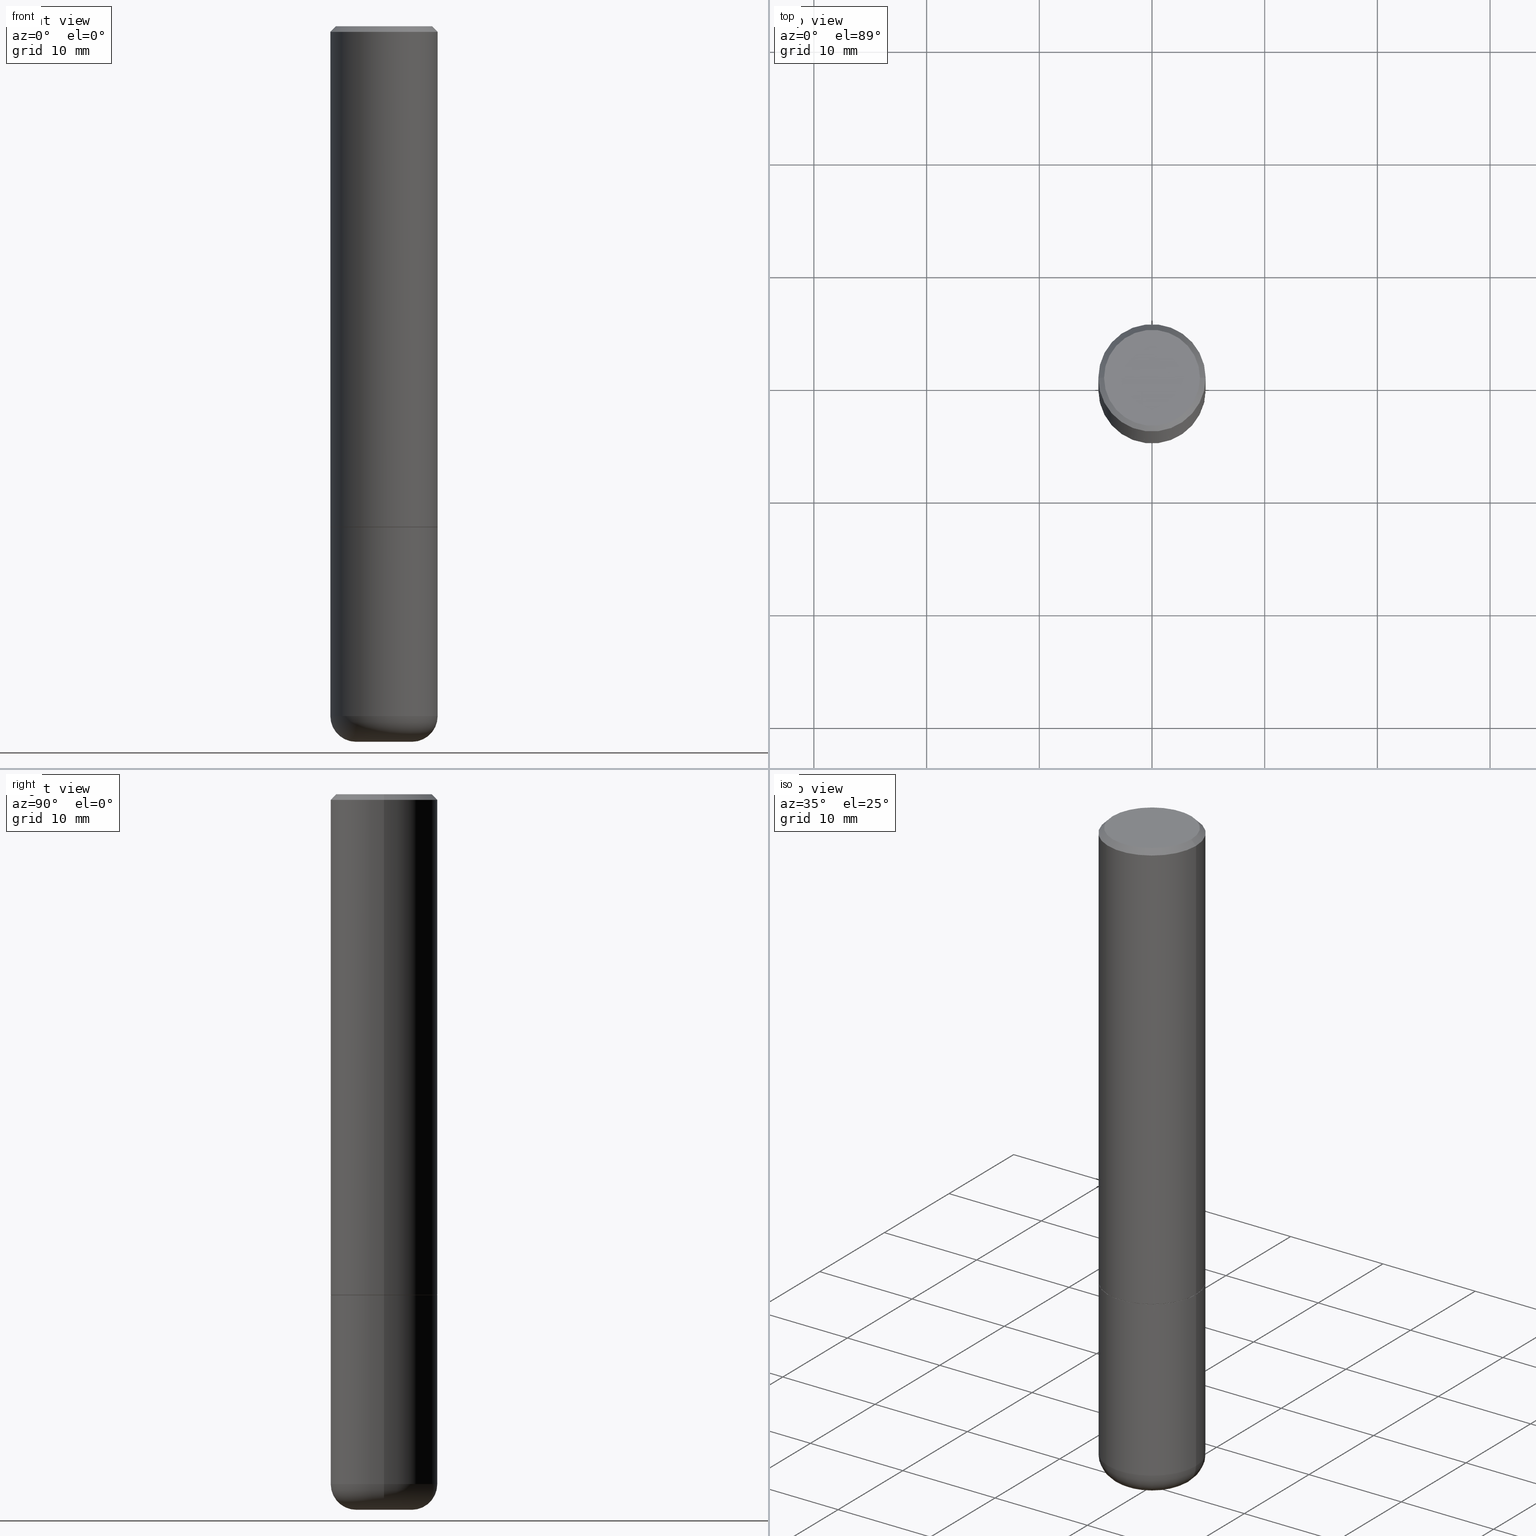
[diagram: canonical four-view strip — front | top / right | iso, engineering-drawing reading convention]
A machine part, canonical four-view strip (front | top / right | iso — engineering-drawing reading convention). The complete STEP part file that produces these views, byte-faithful:
ISO-10303-21;
HEADER;
FILE_DESCRIPTION (( 'STEP AP203' ),
    '1' );
FILE_NAME ('38824.STEP',
    '2024-03-03T15:08:20',
    ( '' ),
    ( '' ),
    'SwSTEP 2.0',
    'SolidWorks 2023',
    '' );
FILE_SCHEMA (( 'CONFIG_CONTROL_DESIGN' ));
ENDSEC;

DATA;
#1 = EDGE_CURVE ( 'NONE', #234, #343, #133, .T. ) ;
#2 = LINE ( 'NONE', #179, #131 ) ;
#3 = VERTEX_POINT ( 'NONE', #364 ) ;
#4 = DIRECTION ( 'NONE',  ( 1.000000000000000000, -6.982962677686265922E-15, 0.000000000000000000 ) ) ;
#5 = EDGE_LOOP ( 'NONE', ( #176, #320, #331, #142 ) ) ;
#6 = CC_DESIGN_SECURITY_CLASSIFICATION ( #139, ( #114 ) ) ;
#7 = CC_DESIGN_PERSON_AND_ORGANIZATION_ASSIGNMENT ( #191, #77, ( #114 ) ) ;
#8 = DIRECTION ( 'NONE',  ( 1.000000000000000000, -6.982962677686265922E-15, 0.000000000000000000 ) ) ;
#9 = AXIS2_PLACEMENT_3D ( 'NONE', #304, #171, #101 ) ;
#10 = DIRECTION ( 'NONE',  ( 7.105427357601001859E-15, 1.000000000000000000, -3.491481338843145583E-15 ) ) ;
#11 = CARTESIAN_POINT ( 'NONE',  ( -0.1675000000000000100, 1.204561061900881047E-15, 2.134256245049375487E-17 ) ) ;
#12 = DIRECTION ( 'NONE',  ( -2.445468806185136597E-29, 3.491481338843145583E-15, 1.000000000000000000 ) ) ;
#13 = CARTESIAN_POINT ( 'NONE',  ( -0.09750000000000001721, -7.721690859245884565E-15, -2.410000000000000142 ) ) ;
#14 = ORIENTED_EDGE ( 'NONE', *, *, #410, .F. ) ;
#15 = CIRCLE ( 'NONE', #208, 0.08999999999999992728 ) ;
#16 = DIRECTION ( 'NONE',  ( 1.000000000000000000, -6.982962677686265922E-15, 0.000000000000000000 ) ) ;
#17 = APPROVAL ( #23, 'UNSPECIFIED' ) ;
#18 = ORIENTED_EDGE ( 'NONE', *, *, #31, .T. ) ;
#19 = DIRECTION ( 'NONE',  ( -2.445468806185136597E-29, 3.491481338843145583E-15, 1.000000000000000000 ) ) ;
#20 = PERSON_AND_ORGANIZATION ( #342, #418 ) ;
#21 = ADVANCED_BREP_SHAPE_REPRESENTATION ( '38824', ( #289, #41, #415 ), #216 ) ;
#22 = ORIENTED_EDGE ( 'NONE', *, *, #410, .T. ) ;
#23 = APPROVAL_STATUS ( 'not_yet_approved' ) ;
#24 = APPROVAL ( #28, 'UNSPECIFIED' ) ;
#25 = APPROVAL_ROLE ( '' ) ;
#26 = APPLICATION_CONTEXT ( 'configuration controlled 3d designs of mechanical parts and assemblies' ) ;
#27 = DIRECTION ( 'NONE',  ( -0.7071067811865715536, 7.493145998870439357E-15, 0.7071067811865232589 ) ) ;
#28 = APPROVAL_STATUS ( 'not_yet_approved' ) ;
#29 = CC_DESIGN_PERSON_AND_ORGANIZATION_ASSIGNMENT ( #405, #118, ( #139 ) ) ;
#30 = CONICAL_SURFACE ( 'NONE', #60, 0.1865000000000000546, 0.7853981633974824739 ) ;
#31 = EDGE_CURVE ( 'NONE', #264, #46, #67, .T. ) ;
#32 = EDGE_CURVE ( 'NONE', #128, #264, #251, .T. ) ;
#33 = AXIS2_PLACEMENT_3D ( 'NONE', #38, #269, #100 ) ;
#34 = FACE_OUTER_BOUND ( 'NONE', #277, .T. ) ;
#35 = CIRCLE ( 'NONE', #88, 0.1875000000000001943 ) ;
#36 = ORIENTED_EDGE ( 'NONE', *, *, #130, .T. ) ;
#37 = APPROVAL_STATUS ( 'not_yet_approved' ) ;
#38 = CARTESIAN_POINT ( 'NONE',  ( 0.000000000000000000, 0.000000000000000000, 0.000000000000000000 ) ) ;
#39 = FACE_OUTER_BOUND ( 'NONE', #5, .T. ) ;
#40 = CARTESIAN_POINT ( 'NONE',  ( 0.1875000000000000555, -1.356173001359025663E-15, -0.02000000000000004205 ) ) ;
#41 = MANIFOLD_SOLID_BREP ( 'Body-Move/Copy2[2]', #257 ) ;
#42 = CARTESIAN_POINT ( 'NONE',  ( 0.000000000000000000, 0.000000000000000000, 0.000000000000000000 ) ) ;
#43 = CARTESIAN_POINT ( 'NONE',  ( -0.1875000000000000555, 1.239475875289312104E-15, -0.02000000000000004205 ) ) ;
#44 = DIRECTION ( 'NONE',  ( -1.000000000000000000, 6.982962677686265922E-15, 0.000000000000000000 ) ) ;
#45 = DIRECTION ( 'NONE',  ( 1.000000000000000000, -6.982962677686265922E-15, 0.000000000000000000 ) ) ;
#46 = VERTEX_POINT ( 'NONE', #43 ) ;
#47 =( CONVERSION_BASED_UNIT ( 'INCH', #318 ) LENGTH_UNIT ( ) NAMED_UNIT ( #126 ) );
#48 = ADVANCED_FACE ( 'NONE', ( #39 ), #30, .T. ) ;
#49 = AXIS2_PLACEMENT_3D ( 'NONE', #388, #291, #258 ) ;
#50 = ORIENTED_EDGE ( 'NONE', *, *, #73, .F. ) ;
#51 = APPROVAL_DATE_TIME ( #282, #17 ) ;
#52 = APPROVAL_PERSON_ORGANIZATION ( #108, #98, #366 ) ;
#53 = FACE_OUTER_BOUND ( 'NONE', #194, .T. ) ;
#54 = APPLICATION_PROTOCOL_DEFINITION ( 'international standard', 'config_control_design', 1994, #209 ) ;
#55 = CARTESIAN_POINT ( 'NONE',  ( -0.1874999999999999722, -7.082202397061793830E-15, -2.410000000000000142 ) ) ;
#56 = ORIENTED_EDGE ( 'NONE', *, *, #32, .T. ) ;
#57 = COORDINATED_UNIVERSAL_TIME_OFFSET ( 5, 0, .BEHIND. ) ;
#58 = AXIS2_PLACEMENT_3D ( 'NONE', #13, #10, #244 ) ;
#59 = AXIS2_PLACEMENT_3D ( 'NONE', #200, #168, #8 ) ;
#60 = AXIS2_PLACEMENT_3D ( 'NONE', #268, #334, #45 ) ;
#61 = EDGE_CURVE ( 'NONE', #310, #161, #125, .T. ) ;
#62 = CARTESIAN_POINT ( 'NONE',  ( 4.279570410823989044E-29, -6.110092342975505460E-15, -1.750000000000000222 ) ) ;
#63 = FACE_OUTER_BOUND ( 'NONE', #134, .T. ) ;
#64 = PLANE ( 'NONE',  #281 ) ;
#65 = ORIENTED_EDGE ( 'NONE', *, *, #106, .T. ) ;
#66 = LINE ( 'NONE', #267, #70 ) ;
#67 = LINE ( 'NONE', #332, #371 ) ;
#68 = CARTESIAN_POINT ( 'NONE',  ( 5.893579822906179826E-29, -8.414470026611981678E-15, -2.410000000000000142 ) ) ;
#69 = EDGE_LOOP ( 'NONE', ( #177, #120 ) ) ;
#70 = VECTOR ( 'NONE', #363, 39.37007874015748143 ) ;
#71 = CARTESIAN_POINT ( 'NONE',  ( -0.1875000000000000278, -5.930013555243555721E-15, -1.750000000000000222 ) ) ;
#72 = DIRECTION ( 'NONE',  ( 1.000000000000000000, -6.982962677686261189E-15, 0.000000000000000000 ) ) ;
#73 = EDGE_CURVE ( 'NONE', #3, #161, #330, .T. ) ;
#74 = LINE ( 'NONE', #79, #266 ) ;
#75 = ORIENTED_EDGE ( 'NONE', *, *, #93, .F. ) ;
#76 = DATE_AND_TIME ( #245, #293 ) ;
#77 = PERSON_AND_ORGANIZATION_ROLE ( 'creator' ) ;
#78 = CC_DESIGN_APPROVAL ( #17, ( #114 ) ) ;
#79 = CARTESIAN_POINT ( 'NONE',  ( -0.1875000000000001110, 1.332267629550188637E-15, -9.223003294227953596E-30 ) ) ;
#80 = CC_DESIGN_PERSON_AND_ORGANIZATION_ASSIGNMENT ( #402, #275, ( #129 ) ) ;
#81 = DATE_TIME_ROLE ( 'creation_date' ) ;
#82 = CARTESIAN_POINT ( 'NONE',  ( 4.279570410823989044E-29, -6.110092342975505460E-15, -1.750000000000000222 ) ) ;
#83 = ORIENTED_EDGE ( 'NONE', *, *, #1, .F. ) ;
#84 = CARTESIAN_POINT ( 'NONE',  ( -0.1875000000000000278, 1.332267629550188046E-15, -9.223003294227947991E-30 ) ) ;
#85 = CALENDAR_DATE ( 2024, 3, 3 ) ;
#86 = CONICAL_SURFACE ( 'NONE', #387, 0.1875000000000000555, 0.7853981633974473908 ) ;
#87 = AXIS2_PLACEMENT_3D ( 'NONE', #376, #347, #181 ) ;
#88 = AXIS2_PLACEMENT_3D ( 'NONE', #414, #189, #119 ) ;
#89 = EDGE_CURVE ( 'NONE', #167, #377, #372, .T. ) ;
#90 = CARTESIAN_POINT ( 'NONE',  ( 0.1875000000000001943, -7.415906363702837461E-15, -1.749000000000000110 ) ) ;
#91 = FACE_OUTER_BOUND ( 'NONE', #197, .T. ) ;
#92 = CARTESIAN_POINT ( 'NONE',  ( 4.279570410823989044E-29, -6.110092342975505460E-15, -1.750000000000000222 ) ) ;
#93 = EDGE_CURVE ( 'NONE', #343, #234, #99, .T. ) ;
#94 = CARTESIAN_POINT ( 'NONE',  ( 0.1875000000000000278, -7.419397845041680468E-15, -1.750000000000000222 ) ) ;
#95 = DIRECTION ( 'NONE',  ( -2.445468806185136597E-29, 3.491481338843145583E-15, 1.000000000000000000 ) ) ;
#96 = FACE_OUTER_BOUND ( 'NONE', #385, .T. ) ;
#97 = ORIENTED_EDGE ( 'NONE', *, *, #280, .F. ) ;
#98 = APPROVAL ( #37, 'UNSPECIFIED' ) ;
#99 = CIRCLE ( 'NONE', #109, 0.1875000000000000278 ) ;
#100 = DIRECTION ( 'NONE',  ( 1.000000000000000000, -6.982962677686266711E-15, 4.876176775795935793E-29 ) ) ;
#101 = DIRECTION ( 'NONE',  ( 1.000000000000000000, -6.982962677686266711E-15, 0.000000000000000000 ) ) ;
#102 = CARTESIAN_POINT ( 'NONE',  ( 1.169646248512449595E-15, 0.1675000000000000100, -5.741518430309759002E-16 ) ) ;
#103 = DIRECTION ( 'NONE',  ( 1.000000000000000000, -6.982962677686266711E-15, 4.875370901645440628E-29 ) ) ;
#104 = ADVANCED_FACE ( 'NONE', ( #406 ), #215, .T. ) ;
#105 = ORIENTED_EDGE ( 'NONE', *, *, #166, .T. ) ;
#106 = EDGE_CURVE ( 'NONE', #161, #343, #341, .T. ) ;
#107 = LOCAL_TIME ( 10, 8, 20.00000000000000000, #217 ) ;
#108 = PERSON_AND_ORGANIZATION ( #342, #418 ) ;
#109 = AXIS2_PLACEMENT_3D ( 'NONE', #82, #116, #411 ) ;
#110 = ORIENTED_EDGE ( 'NONE', *, *, #221, .F. ) ;
#111 = DATE_TIME_ROLE ( 'classification_date' ) ;
#112 = FACE_OUTER_BOUND ( 'NONE', #69, .T. ) ;
#113 = PERSON_AND_ORGANIZATION ( #342, #418 ) ;
#114 = PRODUCT_DEFINITION_FORMATION_WITH_SPECIFIED_SOURCE ( 'ANY', '', #129, .NOT_KNOWN. ) ;
#115 = DESIGN_CONTEXT ( 'detailed design', #26, 'design' ) ;
#116 = DIRECTION ( 'NONE',  ( -2.445468806185136597E-29, 3.491481338843145583E-15, 1.000000000000000000 ) ) ;
#117 = CIRCLE ( 'NONE', #87, 0.1865000000000000546 ) ;
#118 = PERSON_AND_ORGANIZATION_ROLE ( 'classification_officer' ) ;
#119 = DIRECTION ( 'NONE',  ( 1.000000000000000000, -6.982962677686265922E-15, 0.000000000000000000 ) ) ;
#120 = ORIENTED_EDGE ( 'NONE', *, *, #93, .T. ) ;
#121 = CALENDAR_DATE ( 2024, 3, 3 ) ;
#122 = CARTESIAN_POINT ( 'NONE',  ( -5.219257071676098903E-46, 7.451715851902235727E-32, 2.134256245050205639E-17 ) ) ;
#123 = ADVANCED_FACE ( 'NONE', ( #276 ), #225, .T. ) ;
#124 = CIRCLE ( 'NONE', #353, 0.1875000000000000555 ) ;
#125 = CIRCLE ( 'NONE', #58, 0.08999999999999992728 ) ;
#126 = DIMENSIONAL_EXPONENTS ( 1.000000000000000000, 0.000000000000000000, 0.000000000000000000, 0.000000000000000000, 0.000000000000000000, 0.000000000000000000, 0.000000000000000000 ) ;
#127 = CARTESIAN_POINT ( 'NONE',  ( 4.890937612370283668E-31, -6.982962677686305168E-17, -0.02000000000000004205 ) ) ;
#128 = VERTEX_POINT ( 'NONE', #403 ) ;
#129 = PRODUCT ( '38824', '38824', '', ( #283 ) ) ;
#130 = EDGE_CURVE ( 'NONE', #377, #211, #35, .T. ) ;
#131 = VECTOR ( 'NONE', #219, 39.37007874015748854 ) ;
#132 = DIRECTION ( 'NONE',  ( -2.445468806185136597E-29, 3.491481338843145583E-15, 1.000000000000000000 ) ) ;
#133 = CIRCLE ( 'NONE', #9, 0.1875000000000000278 ) ;
#134 = EDGE_LOOP ( 'NONE', ( #14, #36, #143, #97 ) ) ;
#135 = CARTESIAN_POINT ( 'NONE',  ( 0.1875000000000001110, -1.309305502066175797E-15, 9.142831454617385217E-30 ) ) ;
#136 = ORIENTED_EDGE ( 'NONE', *, *, #274, .F. ) ;
#137 = DIRECTION ( 'NONE',  ( -1.000000000000000000, 6.982962677686265922E-15, -4.876176775795935793E-29 ) ) ;
#138 = CARTESIAN_POINT ( 'NONE',  ( -5.219257071676098903E-46, 7.451715851902235727E-32, 2.134256245050205639E-17 ) ) ;
#139 = SECURITY_CLASSIFICATION ( '', '', #373 ) ;
#140 = DIRECTION ( 'NONE',  ( 1.000000000000000000, -6.982962677686265922E-15, 4.876176775795935793E-29 ) ) ;
#141 = CARTESIAN_POINT ( 'NONE',  ( -0.09750000000000003109, -7.559063288401780041E-15, -2.500000000000000000 ) ) ;
#142 = ORIENTED_EDGE ( 'NONE', *, *, #399, .F. ) ;
#143 = ORIENTED_EDGE ( 'NONE', *, *, #323, .T. ) ;
#144 = TOROIDAL_SURFACE ( 'NONE', #273, 0.09750000000000001721, 0.08999999999999992728 ) ;
#145 =( NAMED_UNIT ( * ) SI_UNIT ( $, .STERADIAN. ) SOLID_ANGLE_UNIT ( ) );
#146 = CIRCLE ( 'NONE', #148, 0.1865000000000000546 ) ;
#147 = CARTESIAN_POINT ( 'NONE',  ( -0.1865000000000000546, -4.779631686434695429E-15, -1.750000000000000222 ) ) ;
#148 = AXIS2_PLACEMENT_3D ( 'NONE', #322, #379, #16 ) ;
#149 = ORIENTED_EDGE ( 'NONE', *, *, #380, .F. ) ;
#150 =( NAMED_UNIT ( * ) PLANE_ANGLE_UNIT ( ) SI_UNIT ( $, .RADIAN. ) );
#151 = DIRECTION ( 'NONE',  ( 1.000000000000000000, -6.982962677686265133E-15, 4.883557194083112340E-29 ) ) ;
#152 = EDGE_LOOP ( 'NONE', ( #248, #345, #18, #240 ) ) ;
#153 = SHAPE_DEFINITION_REPRESENTATION ( #315, #21 ) ;
#154 = EDGE_LOOP ( 'NONE', ( #407, #314, #50, #292 ) ) ;
#155 = CALENDAR_DATE ( 2024, 3, 3 ) ;
#156 = DIRECTION ( 'NONE',  ( 1.000000000000000000, 0.000000000000000000, 0.000000000000000000 ) ) ;
#157 = CARTESIAN_POINT ( 'NONE',  ( 6.113672015462842613E-29, -8.728703347107864943E-15, -2.500000000000000000 ) ) ;
#158 = CLOSED_SHELL ( 'NONE', ( #228, #326, #186, #252, #180, #104 ) ) ;
#159 = EDGE_CURVE ( 'NONE', #164, #167, #117, .T. ) ;
#160 = LINE ( 'NONE', #344, #409 ) ;
#161 = VERTEX_POINT ( 'NONE', #55 ) ;
#162 = LOCAL_TIME ( 10, 8, 20.00000000000000000, #284 ) ;
#163 = EDGE_CURVE ( 'NONE', #128, #254, #160, .T. ) ;
#164 = VERTEX_POINT ( 'NONE', #253 ) ;
#165 = VECTOR ( 'NONE', #204, 39.37007874015748143 ) ;
#166 = EDGE_CURVE ( 'NONE', #167, #164, #146, .T. ) ;
#167 = VERTEX_POINT ( 'NONE', #147 ) ;
#168 = DIRECTION ( 'NONE',  ( -2.445468806185136597E-29, 3.491481338843145583E-15, 1.000000000000000000 ) ) ;
#169 = ORIENTED_EDGE ( 'NONE', *, *, #73, .T. ) ;
#170 = CARTESIAN_POINT ( 'NONE',  ( 0.000000000000000000, 0.000000000000000000, 0.000000000000000000 ) ) ;
#171 = DIRECTION ( 'NONE',  ( -2.445468806185136597E-29, 3.491481338843145583E-15, 1.000000000000000000 ) ) ;
#172 = EDGE_CURVE ( 'NONE', #264, #128, #389, .T. ) ;
#173 = CARTESIAN_POINT ( 'NONE',  ( 6.113672015462842613E-29, -8.728703347107864943E-15, -2.500000000000000000 ) ) ;
#174 = CARTESIAN_POINT ( 'NONE',  ( 5.893579822906179826E-29, -8.414470026611981678E-15, -2.410000000000000142 ) ) ;
#175 = FACE_OUTER_BOUND ( 'NONE', #370, .T. ) ;
#176 = ORIENTED_EDGE ( 'NONE', *, *, #159, .T. ) ;
#177 = ORIENTED_EDGE ( 'NONE', *, *, #1, .T. ) ;
#178 = PERSON_AND_ORGANIZATION_ROLE ( 'design_supplier' ) ;
#179 = CARTESIAN_POINT ( 'NONE',  ( 0.1865000000000000546, -7.412414882363994454E-15, -1.750000000000000222 ) ) ;
#180 = ADVANCED_FACE ( 'NONE', ( #53 ), #231, .T. ) ;
#181 = DIRECTION ( 'NONE',  ( 1.000000000000000000, -6.982962677686265922E-15, 0.000000000000000000 ) ) ;
#182 = PERSON_AND_ORGANIZATION_ROLE ( 'creator' ) ;
#183 = CIRCLE ( 'NONE', #49, 0.1875000000000000278 ) ;
#184 =( LENGTH_UNIT ( ) NAMED_UNIT ( * ) SI_UNIT ( $, .METRE. ) );
#185 = AXIS2_PLACEMENT_3D ( 'NONE', #42, #95, #398 ) ;
#186 = ADVANCED_FACE ( 'NONE', ( #112 ), #224, .F. ) ;
#187 = PERSON_AND_ORGANIZATION ( #342, #418 ) ;
#188 = EDGE_CURVE ( 'NONE', #161, #3, #183, .T. ) ;
#189 = DIRECTION ( 'NONE',  ( -2.445468806185136597E-29, 3.491481338843145583E-15, 1.000000000000000000 ) ) ;
#190 = ORIENTED_EDGE ( 'NONE', *, *, #31, .F. ) ;
#191 = PERSON_AND_ORGANIZATION ( #342, #418 ) ;
#192 = DIRECTION ( 'NONE',  ( -2.445468806185136597E-29, 3.491481338843145583E-15, 1.000000000000000000 ) ) ;
#193 = CARTESIAN_POINT ( 'NONE',  ( 4.277124942017804562E-29, -6.106600861636661664E-15, -1.749000000000000110 ) ) ;
#194 = EDGE_LOOP ( 'NONE', ( #285, #392, #203, #220 ) ) ;
#195 = CC_DESIGN_APPROVAL ( #24, ( #139 ) ) ;
#196 = CYLINDRICAL_SURFACE ( 'NONE', #232, 0.1875000000000000278 ) ;
#197 = EDGE_LOOP ( 'NONE', ( #169, #65, #83, #136 ) ) ;
#198 = EDGE_CURVE ( 'NONE', #211, #377, #393, .T. ) ;
#199 = CIRCLE ( 'NONE', #369, 0.09750000000000003109 ) ;
#200 = CARTESIAN_POINT ( 'NONE',  ( 6.113672015462842613E-29, -8.728703347107864943E-15, -2.500000000000000000 ) ) ;
#201 = CARTESIAN_POINT ( 'NONE',  ( -0.1865000000000000546, -4.784930140782917831E-15, -1.750000000000000222 ) ) ;
#202 = DIRECTION ( 'NONE',  ( 2.445468806185136597E-29, -3.491481338843145583E-15, -1.000000000000000000 ) ) ;
#203 = ORIENTED_EDGE ( 'NONE', *, *, #382, .T. ) ;
#204 = DIRECTION ( 'NONE',  ( -2.445468806185136877E-29, 3.491481338843145188E-15, 1.000000000000000000 ) ) ;
#205 = DIRECTION ( 'NONE',  ( -2.445468806185136597E-29, 3.491481338843145583E-15, 1.000000000000000000 ) ) ;
#206 = PRODUCT_RELATED_PRODUCT_CATEGORY ( 'detail', '', ( #129 ) ) ;
#207 = DIRECTION ( 'NONE',  ( 2.445468806185136597E-29, -3.491481338843145583E-15, -1.000000000000000000 ) ) ;
#208 = AXIS2_PLACEMENT_3D ( 'NONE', #361, #329, #296 ) ;
#209 = APPLICATION_CONTEXT ( 'configuration controlled 3d designs of mechanical parts and assemblies' ) ;
#210 = DIRECTION ( 'NONE',  ( -2.445468806185136597E-29, 3.491481338843145583E-15, 1.000000000000000000 ) ) ;
#211 = VERTEX_POINT ( 'NONE', #90 ) ;
#212 = DIRECTION ( 'NONE',  ( 0.000000000000000000, 0.000000000000000000, 1.000000000000000000 ) ) ;
#213 = CARTESIAN_POINT ( 'NONE',  ( 4.279570410823989044E-29, -6.110092342975505460E-15, -1.750000000000000222 ) ) ;
#214 = CC_DESIGN_DATE_AND_TIME_ASSIGNMENT ( #76, #111, ( #139 ) ) ;
#215 = PLANE ( 'NONE',  #305 ) ;
#216 =( GEOMETRIC_REPRESENTATION_CONTEXT ( 3 ) GLOBAL_UNCERTAINTY_ASSIGNED_CONTEXT ( ( #265 ) ) GLOBAL_UNIT_ASSIGNED_CONTEXT ( ( #47, #150, #145 ) ) REPRESENTATION_CONTEXT ( 'NONE', 'WORKASPACE' ) );
#217 = COORDINATED_UNIVERSAL_TIME_OFFSET ( 5, 0, .BEHIND. ) ;
#218 = DIRECTION ( 'NONE',  ( 1.000000000000000000, -6.982962677686265922E-15, 0.000000000000000000 ) ) ;
#219 = DIRECTION ( 'NONE',  ( 0.7071067811865715536, -2.468850131082509496E-15, 0.7071067811865232589 ) ) ;
#220 = ORIENTED_EDGE ( 'NONE', *, *, #188, .F. ) ;
#221 = EDGE_CURVE ( 'NONE', #254, #46, #259, .T. ) ;
#222 = DATE_AND_TIME ( #121, #107 ) ;
#223 = AXIS2_PLACEMENT_3D ( 'NONE', #62, #383, #140 ) ;
#224 = PLANE ( 'NONE',  #286 ) ;
#225 = CONICAL_SURFACE ( 'NONE', #359, 0.1865000000000000546, 0.7853981633974824739 ) ;
#226 = DIRECTION ( 'NONE',  ( 2.438088387897960049E-29, -3.491481338843145188E-15, -1.000000000000000000 ) ) ;
#227 = FACE_OUTER_BOUND ( 'NONE', #243, .T. ) ;
#228 = ADVANCED_FACE ( 'NONE', ( #91 ), #196, .T. ) ;
#229 = AXIS2_PLACEMENT_3D ( 'NONE', #122, #375, #256 ) ;
#230 = FACE_OUTER_BOUND ( 'NONE', #154, .T. ) ;
#231 = TOROIDAL_SURFACE ( 'NONE', #351, 0.09750000000000001721, 0.08999999999999992728 ) ;
#232 = AXIS2_PLACEMENT_3D ( 'NONE', #356, #192, #260 ) ;
#233 = DIRECTION ( 'NONE',  ( 1.000000000000000000, -6.982962677686266711E-15, 4.876176775795935793E-29 ) ) ;
#234 = VERTEX_POINT ( 'NONE', #94 ) ;
#235 = ORIENTED_EDGE ( 'NONE', *, *, #159, .F. ) ;
#236 = AXIS2_PLACEMENT_3D ( 'NONE', #138, #205, #103 ) ;
#237 = DIRECTION ( 'NONE',  ( -1.000000000000000000, 6.982962677686265922E-15, 0.000000000000000000 ) ) ;
#238 = ADVANCED_FACE ( 'NONE', ( #227 ), #360, .F. ) ;
#239 = EDGE_LOOP ( 'NONE', ( #327, #149 ) ) ;
#240 = ORIENTED_EDGE ( 'NONE', *, *, #280, .T. ) ;
#241 = DIRECTION ( 'NONE',  ( 1.000000000000000000, -6.982962677686265922E-15, 0.000000000000000000 ) ) ;
#242 = CARTESIAN_POINT ( 'NONE',  ( 4.890937612370283668E-31, -6.982962677686305168E-17, -0.02000000000000004205 ) ) ;
#243 = EDGE_LOOP ( 'NONE', ( #235, #350 ) ) ;
#244 = DIRECTION ( 'NONE',  ( -1.000000000000000000, 7.105427357600996337E-15, 0.000000000000000000 ) ) ;
#245 = CALENDAR_DATE ( 2024, 3, 3 ) ;
#246 = CC_DESIGN_PERSON_AND_ORGANIZATION_ASSIGNMENT ( #187, #182, ( #391 ) ) ;
#247 = CARTESIAN_POINT ( 'NONE',  ( 5.893579822906179826E-29, -8.414470026611981678E-15, -2.410000000000000142 ) ) ;
#248 = ORIENTED_EDGE ( 'NONE', *, *, #163, .F. ) ;
#249 = COORDINATED_UNIVERSAL_TIME_OFFSET ( 5, 0, .BEHIND. ) ;
#250 = DIRECTION ( 'NONE',  ( -1.000000000000000000, 6.982962677686265922E-15, -4.876176775795935793E-29 ) ) ;
#251 = CIRCLE ( 'NONE', #236, 0.1675000000000000100 ) ;
#252 = ADVANCED_FACE ( 'NONE', ( #298 ), #390, .T. ) ;
#253 = CARTESIAN_POINT ( 'NONE',  ( 0.1865000000000000546, -7.412414882363994454E-15, -1.750000000000000222 ) ) ;
#254 = VERTEX_POINT ( 'NONE', #40 ) ;
#255 = APPROVAL_DATE_TIME ( #222, #24 ) ;
#256 = DIRECTION ( 'NONE',  ( 1.000000000000000000, -6.982962677686266711E-15, 4.875370901645440628E-29 ) ) ;
#257 = CLOSED_SHELL ( 'NONE', ( #48, #309, #300, #290, #337, #123, #238, #287 ) ) ;
#258 = DIRECTION ( 'NONE',  ( 1.000000000000000000, -6.982962677686261189E-15, 0.000000000000000000 ) ) ;
#259 = CIRCLE ( 'NONE', #325, 0.1875000000000000555 ) ;
#260 = DIRECTION ( 'NONE',  ( 1.000000000000000000, -6.982962677686265922E-15, 4.876176775795935793E-29 ) ) ;
#261 = CC_DESIGN_DATE_AND_TIME_ASSIGNMENT ( #317, #81, ( #391 ) ) ;
#262 = CARTESIAN_POINT ( 'NONE',  ( -0.1875000000000001943, -1.755947614656571871E-15, -1.749000000000000110 ) ) ;
#263 = DIRECTION ( 'NONE',  ( -2.445468806185136597E-29, 3.491481338843145583E-15, 1.000000000000000000 ) ) ;
#264 = VERTEX_POINT ( 'NONE', #11 ) ;
#265 = UNCERTAINTY_MEASURE_WITH_UNIT (LENGTH_MEASURE( 1.000000000000000082E-05 ), #47, 'distance_accuracy_value', 'NONE');
#266 = VECTOR ( 'NONE', #311, 39.37007874015748143 ) ;
#267 = CARTESIAN_POINT ( 'NONE',  ( 0.1875000000000000278, -1.309305502066175008E-15, 9.142831454617381013E-30 ) ) ;
#268 = CARTESIAN_POINT ( 'NONE',  ( 4.279570410823989044E-29, -6.110092342975505460E-15, -1.750000000000000222 ) ) ;
#269 = DIRECTION ( 'NONE',  ( -2.445468806185136597E-29, 3.491481338843145583E-15, 1.000000000000000000 ) ) ;
#270 = ORIENTED_EDGE ( 'NONE', *, *, #172, .T. ) ;
#271 = DIRECTION ( 'NONE',  ( 2.438088387897960049E-29, -3.491481338843145188E-15, -1.000000000000000000 ) ) ;
#272 = DIRECTION ( 'NONE',  ( -0.7071067811865469066, 2.468850131082249961E-15, -0.7071067811865482389 ) ) ;
#273 = AXIS2_PLACEMENT_3D ( 'NONE', #68, #12, #367 ) ;
#274 = EDGE_CURVE ( 'NONE', #3, #234, #66, .T. ) ;
#275 = PERSON_AND_ORGANIZATION_ROLE ( 'design_owner' ) ;
#276 = FACE_OUTER_BOUND ( 'NONE', #396, .T. ) ;
#277 = EDGE_LOOP ( 'NONE', ( #278, #404, #416, #190 ) ) ;
#278 = ORIENTED_EDGE ( 'NONE', *, *, #32, .F. ) ;
#279 = APPROVAL_DATE_TIME ( #354, #98 ) ;
#280 = EDGE_CURVE ( 'NONE', #46, #254, #124, .T. ) ;
#281 = AXIS2_PLACEMENT_3D ( 'NONE', #102, #271, #137 ) ;
#282 = DATE_AND_TIME ( #155, #162 ) ;
#283 = MECHANICAL_CONTEXT ( 'NONE', #209, 'mechanical' ) ;
#284 = COORDINATED_UNIVERSAL_TIME_OFFSET ( 5, 0, .BEHIND. ) ;
#285 = ORIENTED_EDGE ( 'NONE', *, *, #61, .F. ) ;
#286 = AXIS2_PLACEMENT_3D ( 'NONE', #92, #226, #324 ) ;
#287 = ADVANCED_FACE ( 'NONE', ( #96 ), #64, .F. ) ;
#288 = APPROVAL_PERSON_ORGANIZATION ( #20, #17, #25 ) ;
#289 = MANIFOLD_SOLID_BREP ( 'Body-Move/Copy2[1]', #158 ) ;
#290 = ADVANCED_FACE ( 'NONE', ( #395 ), #401, .T. ) ;
#291 = DIRECTION ( 'NONE',  ( -2.445468806185136597E-29, 3.491481338843145583E-15, 1.000000000000000000 ) ) ;
#292 = ORIENTED_EDGE ( 'NONE', *, *, #382, .F. ) ;
#293 = LOCAL_TIME ( 10, 8, 20.00000000000000000, #413 ) ;
#294 = DIRECTION ( 'NONE',  ( -2.445468806185136597E-29, 3.491481338843145583E-15, 1.000000000000000000 ) ) ;
#295 = VECTOR ( 'NONE', #27, 39.37007874015748854 ) ;
#296 = DIRECTION ( 'NONE',  ( 1.000000000000000000, -6.982962677686273810E-15, 0.000000000000000000 ) ) ;
#297 = ORIENTED_EDGE ( 'NONE', *, *, #130, .F. ) ;
#298 = FACE_OUTER_BOUND ( 'NONE', #381, .T. ) ;
#299 = ORIENTED_EDGE ( 'NONE', *, *, #198, .T. ) ;
#300 = ADVANCED_FACE ( 'NONE', ( #34 ), #86, .T. ) ;
#301 = LOCAL_TIME ( 10, 8, 20.00000000000000000, #249 ) ;
#302 = AXIS2_PLACEMENT_3D ( 'NONE', #193, #294, #417 ) ;
#303 = CARTESIAN_POINT ( 'NONE',  ( 4.890937612370283668E-31, -6.982962677686305168E-17, -0.02000000000000004205 ) ) ;
#304 = CARTESIAN_POINT ( 'NONE',  ( 4.279570410823989044E-29, -6.110092342975505460E-15, -1.750000000000000222 ) ) ;
#305 = AXIS2_PLACEMENT_3D ( 'NONE', #157, #313, #250 ) ;
#306 = DIRECTION ( 'NONE',  ( -2.445468806185136597E-29, 3.491481338843145583E-15, 1.000000000000000000 ) ) ;
#307 = DIRECTION ( 'NONE',  ( -2.445468806185136597E-29, 3.491481338843145583E-15, 1.000000000000000000 ) ) ;
#308 = CYLINDRICAL_SURFACE ( 'NONE', #33, 0.1875000000000001110 ) ;
#309 = ADVANCED_FACE ( 'NONE', ( #175 ), #308, .T. ) ;
#310 = VERTEX_POINT ( 'NONE', #141 ) ;
#311 = DIRECTION ( 'NONE',  ( -2.445468806185136877E-29, 3.491481338843145188E-15, 1.000000000000000000 ) ) ;
#312 = CC_DESIGN_APPROVAL ( #98, ( #391 ) ) ;
#313 = DIRECTION ( 'NONE',  ( 2.438088387897960049E-29, -3.491481338843145188E-15, -1.000000000000000000 ) ) ;
#314 = ORIENTED_EDGE ( 'NONE', *, *, #61, .T. ) ;
#315 = PRODUCT_DEFINITION_SHAPE ( 'NONE', 'NONE',  #391 ) ;
#316 = VERTEX_POINT ( 'NONE', #400 ) ;
#317 = DATE_AND_TIME ( #321, #301 ) ;
#318 = LENGTH_MEASURE_WITH_UNIT ( LENGTH_MEASURE( 0.02539999999999999897 ), #184 );
#319 = DIRECTION ( 'NONE',  ( 0.7071067811865469066, -7.319954787623254468E-15, -0.7071067811865482389 ) ) ;
#320 = ORIENTED_EDGE ( 'NONE', *, *, #89, .T. ) ;
#321 = CALENDAR_DATE ( 2024, 3, 3 ) ;
#322 = CARTESIAN_POINT ( 'NONE',  ( 4.279570410823989044E-29, -6.110092342975505460E-15, -1.750000000000000222 ) ) ;
#323 = EDGE_CURVE ( 'NONE', #211, #254, #335, .T. ) ;
#324 = DIRECTION ( 'NONE',  ( -1.000000000000000000, 6.982962677686265922E-15, -4.876176775795935793E-29 ) ) ;
#325 = AXIS2_PLACEMENT_3D ( 'NONE', #127, #132, #386 ) ;
#326 = ADVANCED_FACE ( 'NONE', ( #230 ), #144, .T. ) ;
#327 = ORIENTED_EDGE ( 'NONE', *, *, #357, .F. ) ;
#328 = AXIS2_PLACEMENT_3D ( 'NONE', #338, #207, #237 ) ;
#329 = DIRECTION ( 'NONE',  ( -6.982962677686266711E-15, -1.000000000000000000, 3.491481338843145583E-15 ) ) ;
#330 = CIRCLE ( 'NONE', #346, 0.1875000000000000278 ) ;
#331 = ORIENTED_EDGE ( 'NONE', *, *, #198, .F. ) ;
#332 = CARTESIAN_POINT ( 'NONE',  ( -0.1875000000000000555, 1.239475875289312104E-15, -0.02000000000000004205 ) ) ;
#333 = CYLINDRICAL_SURFACE ( 'NONE', #394, 0.1875000000000001110 ) ;
#334 = DIRECTION ( 'NONE',  ( -2.445468806185136597E-29, 3.491481338843145583E-15, 1.000000000000000000 ) ) ;
#335 = LINE ( 'NONE', #135, #165 ) ;
#336 = ORIENTED_EDGE ( 'NONE', *, *, #274, .T. ) ;
#337 = ADVANCED_FACE ( 'NONE', ( #63 ), #333, .T. ) ;
#338 = CARTESIAN_POINT ( 'NONE',  ( 4.890937612370283668E-31, -6.982962677686305168E-17, -0.02000000000000004205 ) ) ;
#339 = ORIENTED_EDGE ( 'NONE', *, *, #399, .T. ) ;
#340 = APPLICATION_PROTOCOL_DEFINITION ( 'international standard', 'config_control_design', 1994, #26 ) ;
#341 = LINE ( 'NONE', #84, #355 ) ;
#342 = PERSON ( 'UNSPECIFIED', 'UNSPECIFIED', 'UNSPECIFIED', ('UNSPECIFIED'), ('UNSPECIFIED'), ('UNSPECIFIED') ) ;
#343 = VERTEX_POINT ( 'NONE', #71 ) ;
#344 = CARTESIAN_POINT ( 'NONE',  ( 0.1875000000000000555, -1.356173001359025663E-15, -0.02000000000000004205 ) ) ;
#345 = ORIENTED_EDGE ( 'NONE', *, *, #172, .F. ) ;
#346 = AXIS2_PLACEMENT_3D ( 'NONE', #174, #307, #72 ) ;
#347 = DIRECTION ( 'NONE',  ( -2.445468806185136597E-29, 3.491481338843145583E-15, 1.000000000000000000 ) ) ;
#348 = CARTESIAN_POINT ( 'NONE',  ( 0.000000000000000000, 0.000000000000000000, 0.000000000000000000 ) ) ;
#349 = DIRECTION ( 'NONE',  ( -2.445468806185136597E-29, 3.491481338843145583E-15, 1.000000000000000000 ) ) ;
#350 = ORIENTED_EDGE ( 'NONE', *, *, #166, .F. ) ;
#351 = AXIS2_PLACEMENT_3D ( 'NONE', #247, #19, #151 ) ;
#352 = DIRECTION ( 'NONE',  ( -2.445468806185136877E-29, 3.491481338843145188E-15, 1.000000000000000000 ) ) ;
#353 = AXIS2_PLACEMENT_3D ( 'NONE', #303, #210, #4 ) ;
#354 = DATE_AND_TIME ( #85, #358 ) ;
#355 = VECTOR ( 'NONE', #352, 39.37007874015748143 ) ;
#356 = CARTESIAN_POINT ( 'NONE',  ( 0.000000000000000000, 0.000000000000000000, 0.000000000000000000 ) ) ;
#357 = EDGE_CURVE ( 'NONE', #316, #310, #384, .T. ) ;
#358 = LOCAL_TIME ( 10, 8, 20.00000000000000000, #57 ) ;
#359 = AXIS2_PLACEMENT_3D ( 'NONE', #213, #349, #218 ) ;
#360 = PLANE ( 'NONE',  #223 ) ;
#361 = CARTESIAN_POINT ( 'NONE',  ( 0.09750000000000001721, -9.095308887686393314E-15, -2.410000000000000142 ) ) ;
#362 = CC_DESIGN_PERSON_AND_ORGANIZATION_ASSIGNMENT ( #113, #178, ( #114 ) ) ;
#363 = DIRECTION ( 'NONE',  ( -2.445468806185136877E-29, 3.491481338843145188E-15, 1.000000000000000000 ) ) ;
#364 = CARTESIAN_POINT ( 'NONE',  ( 0.1874999999999999722, -9.723775528678158264E-15, -2.410000000000000142 ) ) ;
#365 = ORIENTED_EDGE ( 'NONE', *, *, #188, .T. ) ;
#366 = APPROVAL_ROLE ( '' ) ;
#367 = DIRECTION ( 'NONE',  ( 1.000000000000000000, -6.982962677686265133E-15, 4.883557194083112340E-29 ) ) ;
#368 = ORIENTED_EDGE ( 'NONE', *, *, #106, .F. ) ;
#369 = AXIS2_PLACEMENT_3D ( 'NONE', #173, #306, #241 ) ;
#370 = EDGE_LOOP ( 'NONE', ( #299, #22, #110, #397 ) ) ;
#371 = VECTOR ( 'NONE', #272, 39.37007874015748143 ) ;
#372 = LINE ( 'NONE', #201, #295 ) ;
#373 = SECURITY_CLASSIFICATION_LEVEL ( 'unclassified' ) ;
#374 = APPROVAL_PERSON_ORGANIZATION ( #408, #24, #378 ) ;
#375 = DIRECTION ( 'NONE',  ( -2.445468806185136597E-29, 3.491481338843145583E-15, 1.000000000000000000 ) ) ;
#376 = CARTESIAN_POINT ( 'NONE',  ( 4.279570410823989044E-29, -6.110092342975505460E-15, -1.750000000000000222 ) ) ;
#377 = VERTEX_POINT ( 'NONE', #262 ) ;
#378 = APPROVAL_ROLE ( '' ) ;
#379 = DIRECTION ( 'NONE',  ( -2.445468806185136597E-29, 3.491481338843145583E-15, 1.000000000000000000 ) ) ;
#380 = EDGE_CURVE ( 'NONE', #310, #316, #199, .T. ) ;
#381 = EDGE_LOOP ( 'NONE', ( #368, #365, #336, #75 ) ) ;
#382 = EDGE_CURVE ( 'NONE', #316, #3, #15, .T. ) ;
#383 = DIRECTION ( 'NONE',  ( -2.438088387897960049E-29, 3.491481338843145188E-15, 1.000000000000000000 ) ) ;
#384 = CIRCLE ( 'NONE', #59, 0.09750000000000003109 ) ;
#385 = EDGE_LOOP ( 'NONE', ( #270, #56 ) ) ;
#386 = DIRECTION ( 'NONE',  ( 1.000000000000000000, -6.982962677686265922E-15, 0.000000000000000000 ) ) ;
#387 = AXIS2_PLACEMENT_3D ( 'NONE', #242, #202, #44 ) ;
#388 = CARTESIAN_POINT ( 'NONE',  ( 5.893579822906179826E-29, -8.414470026611981678E-15, -2.410000000000000142 ) ) ;
#389 = CIRCLE ( 'NONE', #229, 0.1675000000000000100 ) ;
#390 = CYLINDRICAL_SURFACE ( 'NONE', #185, 0.1875000000000000278 ) ;
#391 = PRODUCT_DEFINITION ( 'UNKNOWN', '', #114, #115 ) ;
#392 = ORIENTED_EDGE ( 'NONE', *, *, #380, .T. ) ;
#393 = CIRCLE ( 'NONE', #302, 0.1875000000000001943 ) ;
#394 = AXIS2_PLACEMENT_3D ( 'NONE', #170, #263, #233 ) ;
#395 = FACE_OUTER_BOUND ( 'NONE', #152, .T. ) ;
#396 = EDGE_LOOP ( 'NONE', ( #412, #105, #339, #297 ) ) ;
#397 = ORIENTED_EDGE ( 'NONE', *, *, #323, .F. ) ;
#398 = DIRECTION ( 'NONE',  ( 1.000000000000000000, -6.982962677686265922E-15, 4.876176775795935793E-29 ) ) ;
#399 = EDGE_CURVE ( 'NONE', #164, #211, #2, .T. ) ;
#400 = CARTESIAN_POINT ( 'NONE',  ( 0.09750000000000003109, -9.409542208182275000E-15, -2.500000000000000000 ) ) ;
#401 = CONICAL_SURFACE ( 'NONE', #328, 0.1875000000000000555, 0.7853981633974473908 ) ;
#402 = PERSON_AND_ORGANIZATION ( #342, #418 ) ;
#403 = CARTESIAN_POINT ( 'NONE',  ( 0.1675000000000000100, -1.252653207992878486E-15, 2.134256245051052740E-17 ) ) ;
#404 = ORIENTED_EDGE ( 'NONE', *, *, #163, .T. ) ;
#405 = PERSON_AND_ORGANIZATION ( #342, #418 ) ;
#406 = FACE_OUTER_BOUND ( 'NONE', #239, .T. ) ;
#407 = ORIENTED_EDGE ( 'NONE', *, *, #357, .T. ) ;
#408 = PERSON_AND_ORGANIZATION ( #342, #418 ) ;
#409 = VECTOR ( 'NONE', #319, 39.37007874015748143 ) ;
#410 = EDGE_CURVE ( 'NONE', #377, #46, #74, .T. ) ;
#411 = DIRECTION ( 'NONE',  ( 1.000000000000000000, -6.982962677686266711E-15, 0.000000000000000000 ) ) ;
#412 = ORIENTED_EDGE ( 'NONE', *, *, #89, .F. ) ;
#413 = COORDINATED_UNIVERSAL_TIME_OFFSET ( 5, 0, .BEHIND. ) ;
#414 = CARTESIAN_POINT ( 'NONE',  ( 4.277124942017804562E-29, -6.106600861636661664E-15, -1.749000000000000110 ) ) ;
#415 = AXIS2_PLACEMENT_3D ( 'NONE', #348, #212, #156 ) ;
#416 = ORIENTED_EDGE ( 'NONE', *, *, #221, .T. ) ;
#417 = DIRECTION ( 'NONE',  ( 1.000000000000000000, -6.982962677686265922E-15, 0.000000000000000000 ) ) ;
#418 = ORGANIZATION ( 'UNSPECIFIED', 'UNSPECIFIED', '' ) ;
ENDSEC;
END-ISO-10303-21;
